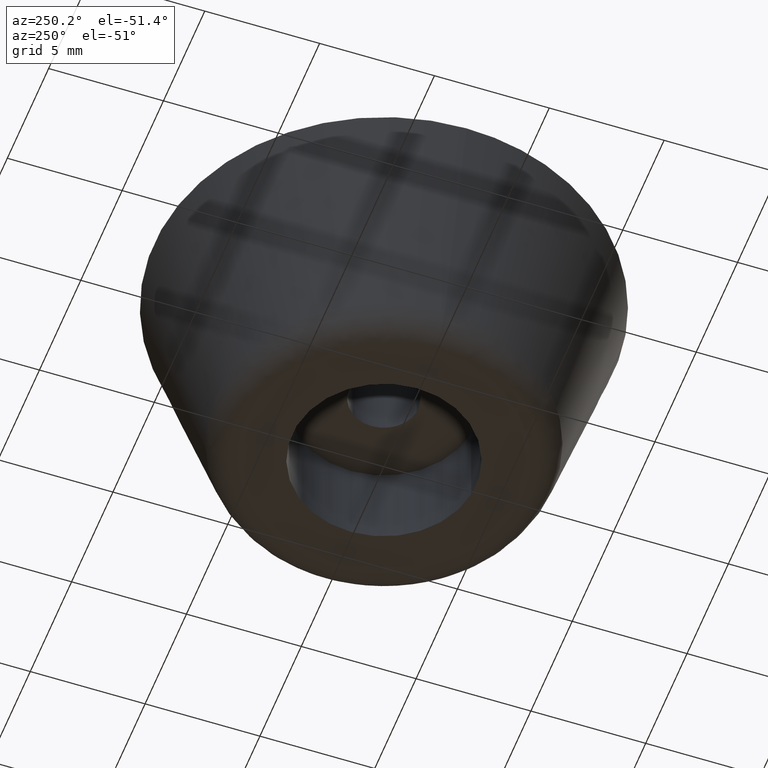
[diagram: clean part render]
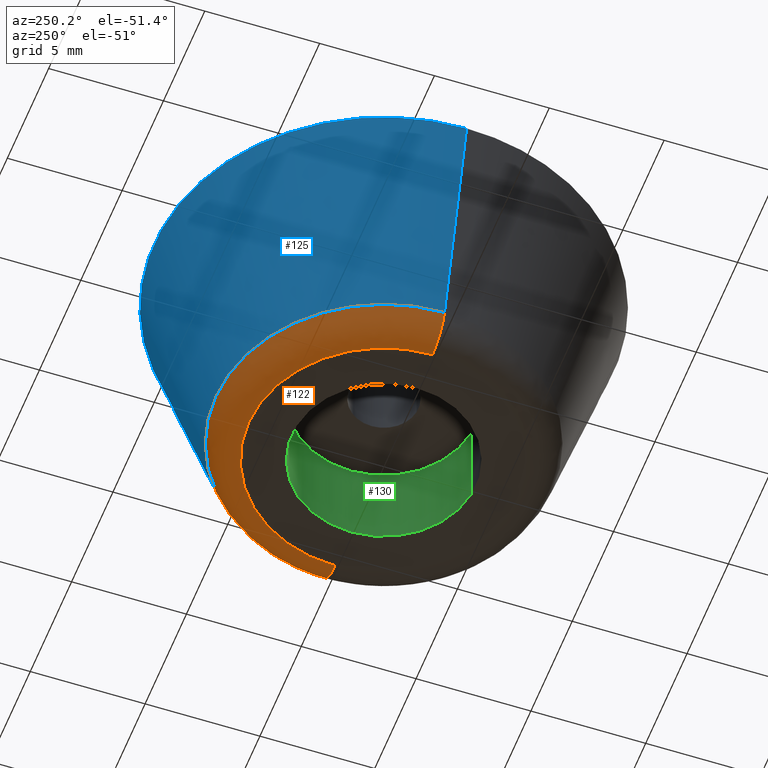
[diagram: same view with three faces highlighted in distinct colors, each labeled with its STEP entity id]
A machine part, auxiliary view with three faces highlighted in distinct colors.
Their STEP definitions:

[orange] entity #122 — the highlighted face is a freeform B-spline surface patch.
#122=ADVANCED_FACE('',(#239),#238,.T.);
#238=( BOUNDED_SURFACE() B_SPLINE_SURFACE( 2,2,((#394,#395,#396,#397,#398),(#399,#400,#401,#402,#403),(#404,#405,#406,#407,#408),(#409,#410,#411,#412,#413),(#414,#415,#416,#417,#418)), .UNSPECIFIED.,.F.,.F.,.F.) B_SPLINE_SURFACE_WITH_KNOTS((3,2,3),(3,2,3),(0.00000000000E+000,5.00000000000E-001,1.00000000000E+000),(0.00000000000E+000,5.00000000000E-001,1.00000000000E+000), .UNSPECIFIED. ) GEOMETRIC_REPRESENTATION_ITEM() RATIONAL_B_SPLINE_SURFACE(((1.00000000000E+000,8.02292928290E-001,1.00000000000E+000,8.02292928290E-001,1.00000000000E+000),(7.07106781187E-001,5.67306770092E-001,7.07106781187E-001,5.67306770092E-001,7.07106781187E-001),(1.00000000000E+000,8.02292928290E-001,1.00000000000E+000,8.02292928290E-001,1.00000000000E+000),(7.07106781187E-001,5.67306770092E-001,7.07106781187E-001,5.67306770092E-001,7.07106781187E-001),(1.00000000000E+000,8.02292928290E-001,1.00000000000E+000,8.02292928290E-001,1.00000000000E+000))) REPRESENTATION_ITEM('') SURFACE() );
#239=FACE_OUTER_BOUND('',#419,.T.);
#394=CARTESIAN_POINT('',(4.44721459583E+000,1.38854085132E-014,1.06897817165E+000));
#395=CARTESIAN_POINT('',(4.76790804733E+000,5.87304449885E-015,5.00940143859E-014));
#396=CARTESIAN_POINT('',(5.88395402367E+000,7.90313057082E-015,4.97379915032E-014));
#397=CARTESIAN_POINT('',(7.00000000000E+000,9.93321664279E-015,4.95404893650E-014));
#398=CARTESIAN_POINT('',(7.32069345150E+000,1.91122625378E-014,1.06897817165E+000));
#399=CARTESIAN_POINT('',(4.44721459583E+000,4.44721459583E+000,1.06897817165E+000));
#400=CARTESIAN_POINT('',(4.76790804733E+000,4.76790804733E+000,1.17366873983E-014));
#401=CARTESIAN_POINT('',(5.88395402367E+000,5.88395402367E+000,2.32119925096E-015));
#402=CARTESIAN_POINT('',(7.00000000000E+000,7.00000000000E+000,-6.82129722890E-015));
#403=CARTESIAN_POINT('',(7.32069345150E+000,7.32069345150E+000,1.06897817165E+000));
#404=CARTESIAN_POINT('',(-7.81716378157E-015,4.44721459583E+000,1.06897817165E+000));
#405=CARTESIAN_POINT('',(-8.38086791142E-015,4.76790804733E+000,1.16240254376E-014));
#406=CARTESIAN_POINT('',(-1.03426158768E-014,5.88395402367E+000,2.44249065418E-015));
#407=CARTESIAN_POINT('',(-1.23043638421E-014,7.00000000000E+000,-6.64230025006E-015));
#408=CARTESIAN_POINT('',(-1.28680679720E-014,7.32069345150E+000,1.06897817165E+000));
#409=CARTESIAN_POINT('',(-4.44721459583E+000,4.44721459583E+000,1.06897817165E+000));
#410=CARTESIAN_POINT('',(-4.76790804733E+000,4.76790804733E+000,1.17366873983E-014));
#411=CARTESIAN_POINT('',(-5.88395402367E+000,5.88395402367E+000,2.32119925096E-015));
#412=CARTESIAN_POINT('',(-7.00000000000E+000,7.00000000000E+000,-6.82129722890E-015));
#413=CARTESIAN_POINT('',(-7.32069345150E+000,7.32069345150E+000,1.06897817165E+000));
#414=CARTESIAN_POINT('',(-4.44721459583E+000,-1.74891904990E-015,1.06897817165E+000));
#415=CARTESIAN_POINT('',(-4.76790804733E+000,-1.08886913240E-014,5.00940143859E-014));
#416=CARTESIAN_POINT('',(-5.88395402367E+000,-1.27821011827E-014,4.97379915032E-014));
#417=CARTESIAN_POINT('',(-7.00000000000E+000,-1.46755110414E-014,4.95404893650E-014));
#418=CARTESIAN_POINT('',(-7.32069345150E+000,-6.62387340614E-015,1.06897817165E+000));
#419=EDGE_LOOP('',(#540,#541,#542,#543));
#540=ORIENTED_EDGE('',*,*,#612,.F.);
#541=ORIENTED_EDGE('',*,*,#613,.F.);
#542=ORIENTED_EDGE('',*,*,#594,.F.);
#543=ORIENTED_EDGE('',*,*,#614,.T.);
#594=EDGE_CURVE('',#704,#705,#706,.T.);
#612=EDGE_CURVE('',#830,#831,#832,.T.);
#613=EDGE_CURVE('',#705,#830,#838,.T.);
#614=EDGE_CURVE('',#704,#831,#844,.T.);
#704=VERTEX_POINT('',#952);
#705=VERTEX_POINT('',#953);
#706=CIRCLE('',#957,5.88395402367E+000);
#830=VERTEX_POINT('',#1042);
#831=VERTEX_POINT('',#1043);
#832=CIRCLE('',#1047,7.32069345150E+000);
#838=(BOUNDED_CURVE() B_SPLINE_CURVE(2,(#1048,#1049,#1050),.UNSPECIFIED.,.F.,.F.) B_SPLINE_CURVE_WITH_KNOTS((3,3),(5.00000000000E-001,1.00000000000E+000),.UNSPECIFIED.) CURVE() GEOMETRIC_REPRESENTATION_ITEM() RATIONAL_B_SPLINE_CURVE((1.00000000000E+000,8.02292928290E-001,1.00000000000E+000)) REPRESENTATION_ITEM('') );
#844=(BOUNDED_CURVE() B_SPLINE_CURVE(3,(#1051,#1052,#1053,#1054),.UNSPECIFIED.,.F.,.F.) B_SPLINE_CURVE_WITH_KNOTS((4,4),(4.99999966067E-001,1.00000000000E+000),.UNSPECIFIED.) CURVE() GEOMETRIC_REPRESENTATION_ITEM() RATIONAL_B_SPLINE_CURVE((1.00000000000E+000,1.00000000000E+000,1.00000000000E+000,1.00000000000E+000)) REPRESENTATION_ITEM('') );
#952=CARTESIAN_POINT('',(-5.88395402367E+000,-7.20552748299E-016,4.96564594998E-014));
#953=CARTESIAN_POINT('',(5.88395402367E+000,7.40148683083E-015,4.96564594998E-014));
#954=CARTESIAN_POINT('',(-1.87898600068E-015,0.00000000000E+000,4.96564594998E-014));
#955=DIRECTION('',(0.00000000000E+000,0.00000000000E+000,-1.00000000000E+000));
#956=DIRECTION('',(-1.00000000000E+000,-0.00000000000E+000,-0.00000000000E+000));
#957=AXIS2_PLACEMENT_3D('',#954,#955,#956);
#1042=CARTESIAN_POINT('',(7.32069345150E+000,-1.78467519121E-015,1.06897817165E+000));
#1043=CARTESIAN_POINT('',(-7.32069345150E+000,-5.62512999143E-015,1.06897817165E+000));
#1044=CARTESIAN_POINT('',(-1.87898600068E-015,0.00000000000E+000,1.06897817165E+000));
#1045=DIRECTION('',(0.00000000000E+000,0.00000000000E+000,1.00000000000E+000));
#1046=DIRECTION('',(1.00000000000E+000,-1.21324356167E-016,-0.00000000000E+000));
#1047=AXIS2_PLACEMENT_3D('',#1044,#1045,#1046);
#1048=CARTESIAN_POINT('',(5.88395402367E+000,7.90313057082E-015,4.97379915032E-014));
#1049=CARTESIAN_POINT('',(7.00000000000E+000,9.93321664279E-015,4.95404893650E-014));
#1050=CARTESIAN_POINT('',(7.32069345150E+000,1.91122625378E-014,1.06897817165E+000));
#1051=CARTESIAN_POINT('',(-5.88395390213E+000,-1.39147949925E-014,5.46613871189E-014));
#1052=CARTESIAN_POINT('',(-6.59890187463E+000,-1.46383854699E-014,3.90880373155E-002));
#1053=CARTESIAN_POINT('',(-7.07781505775E+000,-1.26646557315E-014,3.95414094532E-001));
#1054=CARTESIAN_POINT('',(-7.32069345150E+000,-7.99360577730E-015,1.06897817165E+000));

[blue] entity #125 — the highlighted face is a freeform B-spline surface patch.
#125=ADVANCED_FACE('',(#269),#268,.T.);
#268=( BOUNDED_SURFACE() B_SPLINE_SURFACE( 2,1,((#457,#458),(#459,#460),(#461,#462),(#463,#464),(#465,#466)), .UNSPECIFIED.,.F.,.F.,.F.) B_SPLINE_SURFACE_WITH_KNOTS((3,2,3),(2,2),(0.00000000000E+000,5.00000000000E-001,1.00000000000E+000),(0.00000000000E+000,1.00000000000E+000), .UNSPECIFIED. ) GEOMETRIC_REPRESENTATION_ITEM() RATIONAL_B_SPLINE_SURFACE(((1.00000000000E+000,1.00000000000E+000),(7.07106781187E-001,7.07106781187E-001),(1.00000000000E+000,1.00000000000E+000),(7.07106781187E-001,7.07106781187E-001),(1.00000000000E+000,1.00000000000E+000))) REPRESENTATION_ITEM('') SURFACE() );
#269=FACE_OUTER_BOUND('',#467,.T.);
#457=CARTESIAN_POINT('',(7.32069345150E+000,3.58610552116E-015,1.06897817165E+000));
#458=CARTESIAN_POINT('',(1.00002089999E+001,5.47083527523E-015,1.00006966664E+001));
#459=CARTESIAN_POINT('',(7.32069345150E+000,7.32069345150E+000,1.06897817165E+000));
#460=CARTESIAN_POINT('',(1.00002089999E+001,1.00002089999E+001,1.00006966664E+001));
#461=CARTESIAN_POINT('',(-2.93139698368E-015,7.32069345150E+000,1.06897817165E+000));
#462=CARTESIAN_POINT('',(-4.00434503817E-015,1.00002089999E+001,1.00006966664E+001));
#463=CARTESIAN_POINT('',(-7.32069345150E+000,7.32069345150E+000,1.06897817165E+000));
#464=CARTESIAN_POINT('',(-1.00002089999E+001,1.00002089999E+001,1.00006966664E+001));
#465=CARTESIAN_POINT('',(-7.32069345150E+000,-2.27668844619E-015,1.06897817165E+000));
#466=CARTESIAN_POINT('',(-1.00002089999E+001,-2.53785480110E-015,1.00006966664E+001));
#467=EDGE_LOOP('',(#554,#555,#556,#557));
#554=ORIENTED_EDGE('',*,*,#612,.T.);
#555=ORIENTED_EDGE('',*,*,#616,.T.);
#556=ORIENTED_EDGE('',*,*,#601,.T.);
#557=ORIENTED_EDGE('',*,*,#617,.F.);
#601=EDGE_CURVE('',#733,#747,#754,.T.);
#612=EDGE_CURVE('',#830,#831,#832,.T.);
#616=EDGE_CURVE('',#831,#733,#856,.T.);
#617=EDGE_CURVE('',#830,#747,#862,.T.);
#733=VERTEX_POINT('',#973);
#747=VERTEX_POINT('',#983);
#754=CIRCLE('',#991,1.00000000000E+001);
#830=VERTEX_POINT('',#1042);
#831=VERTEX_POINT('',#1043);
#832=CIRCLE('',#1047,7.32069345150E+000);
#856=(BOUNDED_CURVE() B_SPLINE_CURVE(1,(#1059,#1060),.UNSPECIFIED.,.F.,.F.) B_SPLINE_CURVE_WITH_KNOTS((2,2),(0.00000000000E+000,9.99922000699E-001),.UNSPECIFIED.) CURVE() GEOMETRIC_REPRESENTATION_ITEM() RATIONAL_B_SPLINE_CURVE((1.00000000000E+000,1.00000000000E+000)) REPRESENTATION_ITEM('') );
#862=(BOUNDED_CURVE() B_SPLINE_CURVE(1,(#1061,#1062),.UNSPECIFIED.,.F.,.F.) B_SPLINE_CURVE_WITH_KNOTS((2,2),(0.00000000000E+000,1.00000000000E+000),.UNSPECIFIED.) CURVE() GEOMETRIC_REPRESENTATION_ITEM() RATIONAL_B_SPLINE_CURVE((7.50000000000E-001,7.50000000000E-001)) REPRESENTATION_ITEM('') );
#973=CARTESIAN_POINT('',(-1.00000000000E+001,0.00000000000E+000,1.00000000000E+001));
#983=CARTESIAN_POINT('',(1.00000000000E+001,0.00000000000E+000,1.00000000000E+001));
#988=CARTESIAN_POINT('',(0.00000000000E+000,0.00000000000E+000,1.00000000000E+001));
#989=DIRECTION('',(0.00000000000E+000,2.51214793389E-016,-1.00000000000E+000));
#990=DIRECTION('',(1.00000000000E+000,-0.00000000000E+000,-0.00000000000E+000));
#991=AXIS2_PLACEMENT_3D('',#988,#989,#990);
#1042=CARTESIAN_POINT('',(7.32069345150E+000,-1.78467519121E-015,1.06897817165E+000));
#1043=CARTESIAN_POINT('',(-7.32069345150E+000,-5.62512999143E-015,1.06897817165E+000));
#1044=CARTESIAN_POINT('',(-1.87898600068E-015,0.00000000000E+000,1.06897817165E+000));
#1045=DIRECTION('',(0.00000000000E+000,0.00000000000E+000,1.00000000000E+000));
#1046=DIRECTION('',(1.00000000000E+000,-1.21324356167E-016,-0.00000000000E+000));
#1047=AXIS2_PLACEMENT_3D('',#1044,#1045,#1046);
#1059=CARTESIAN_POINT('',(-7.32069345150E+000,-4.06974120677E-015,1.06897817165E+000));
#1060=CARTESIAN_POINT('',(-9.99999999957E+000,-4.98712802850E-015,9.99999999863E+000));
#1061=CARTESIAN_POINT('',(7.32069345150E+000,4.14483262527E-015,1.06897817165E+000));
#1062=CARTESIAN_POINT('',(1.00002089999E+001,7.10542735760E-015,1.00006966664E+001));

[green] entity #130 — the highlighted cylindrical surface (partial cylindrical patch) has radius 4 mm, axis along (-0, -0, -1).
#130=ADVANCED_FACE('',(#319),#318,.F.);
#318=CYLINDRICAL_SURFACE('',#491,4.00000000000E+000);
#319=FACE_OUTER_BOUND('',#492,.T.);
#488=CARTESIAN_POINT('',(-2.17251144580E-017,2.39968896569E-016,2.00000000000E+000));
#489=DIRECTION('',(-4.82436889898E-015,-4.61645508991E-016,-1.00000000000E+000));
#490=DIRECTION('',(-1.18034234657E-001,9.93009526364E-001,1.11022302463E-016));
#491=AXIS2_PLACEMENT_3D('',#488,#489,#490);
#492=EDGE_LOOP('',(#574,#575,#576,#577));
#574=ORIENTED_EDGE('',*,*,#607,.F.);
#575=ORIENTED_EDGE('',*,*,#622,.T.);
#576=ORIENTED_EDGE('',*,*,#597,.T.);
#577=ORIENTED_EDGE('',*,*,#623,.F.);
#597=EDGE_CURVE('',#719,#718,#726,.T.);
#607=EDGE_CURVE('',#789,#788,#796,.T.);
#622=EDGE_CURVE('',#789,#719,#892,.T.);
#623=EDGE_CURVE('',#788,#718,#898,.T.);
#718=VERTEX_POINT('',#962);
#719=VERTEX_POINT('',#963);
#726=CIRCLE('',#971,3.99999999999E+000);
#788=VERTEX_POINT('',#1012);
#789=VERTEX_POINT('',#1013);
#796=CIRCLE('',#1021,4.00000000000E+000);
#892=(BOUNDED_CURVE() B_SPLINE_CURVE(1,(#1071,#1072),.UNSPECIFIED.,.F.,.F.) B_SPLINE_CURVE_WITH_KNOTS((2,2),(8.33333358172E-002,9.16666671238E-001),.UNSPECIFIED.) CURVE() GEOMETRIC_REPRESENTATION_ITEM() RATIONAL_B_SPLINE_CURVE((1.00000000000E+000,1.00000000000E+000)) REPRESENTATION_ITEM('') );
#898=(BOUNDED_CURVE() B_SPLINE_CURVE(1,(#1073,#1074),.UNSPECIFIED.,.F.,.F.) B_SPLINE_CURVE_WITH_KNOTS((2,2),(8.33333333333E-002,9.16666666667E-001),.UNSPECIFIED.) CURVE() GEOMETRIC_REPRESENTATION_ITEM() RATIONAL_B_SPLINE_CURVE((7.50000000000E-001,7.50000000000E-001)) REPRESENTATION_ITEM('') );
#962=CARTESIAN_POINT('',(4.72823444826E-001,-3.97195644361E+000,1.31811048676E-015));
#963=CARTESIAN_POINT('',(-4.72823444808E-001,3.97195644362E+000,6.62113348372E-016));
#968=CARTESIAN_POINT('',(9.29278876072E-012,4.22439860870E-012,9.90111917568E-016));
#969=DIRECTION('',(-2.75755764086E-015,-4.10839468004E-016,-1.00000000000E+000));
#970=DIRECTION('',(-1.18205861205E-001,9.92989110906E-001,-8.19996422993E-017));
#971=AXIS2_PLACEMENT_3D('',#968,#969,#970);
#1012=CARTESIAN_POINT('',(4.72135486076E-001,-3.97203827811E+000,4.00000000000E+000));
#1013=CARTESIAN_POINT('',(-4.72136938628E-001,3.97203810545E+000,4.00000000000E+000));
#1018=CARTESIAN_POINT('',(2.51354492775E-013,-3.99680288865E-014,4.00000000000E+000));
#1019=DIRECTION('',(6.66133814775E-016,-2.35513868803E-016,-1.00000000000E+000));
#1020=DIRECTION('',(1.18033871519E-001,-9.93009569528E-001,3.12493878586E-016));
#1021=AXIS2_PLACEMENT_3D('',#1018,#1019,#1020);
#1071=CARTESIAN_POINT('',(-4.72136938628E-001,3.97203810545E+000,3.99999998808E+000));
#1072=CARTESIAN_POINT('',(-4.72136938628E-001,3.97203810545E+000,-2.19441951277E-008));
#1073=CARTESIAN_POINT('',(4.72136938628E-001,-3.97203810545E+000,4.00000000000E+000));
#1074=CARTESIAN_POINT('',(4.72136938628E-001,-3.97203810545E+000,4.44089209850E-016));